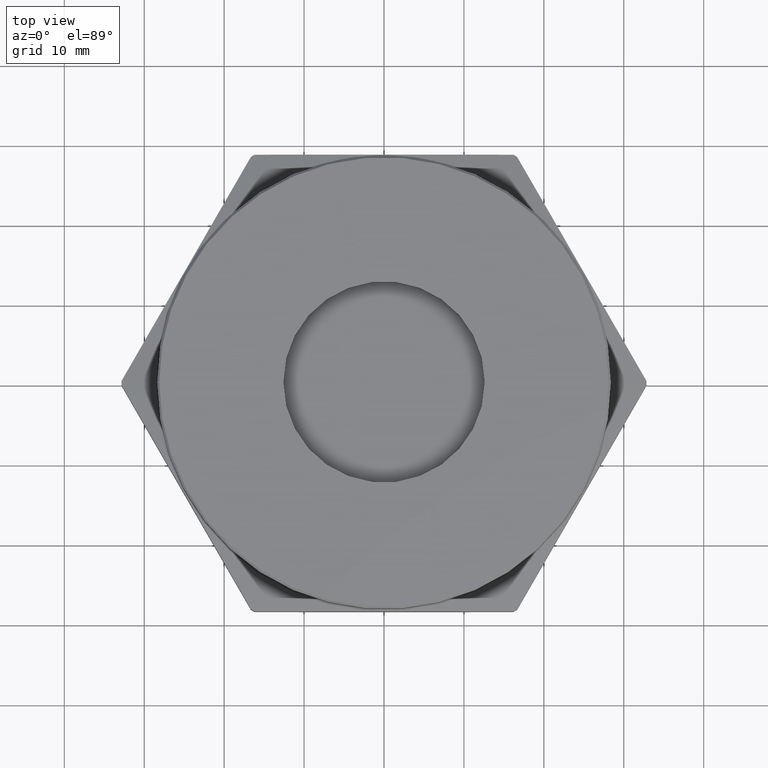
[diagram: clean part render]
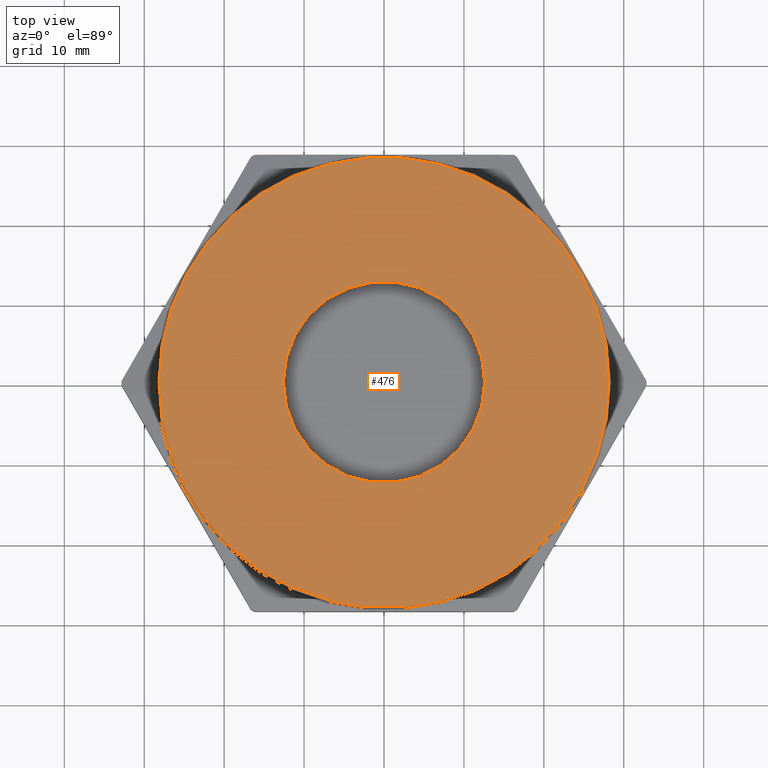
[diagram: same view with one face highlighted and labeled with its STEP entity id]
A machine part, top view. The second image highlights one B-rep face of the part: STEP entity #476.
In plain terms, the highlighted planar face has unit normal (0, 0, 1).
Its self-contained STEP definition (entity closure, byte-faithful):
#240 = CIRCLE ( 'NONE', #712, 0.4960000000000002700 ) ;
#273 = EDGE_CURVE ( 'NONE', #531, #583, #1761, .T. ) ;
#358 = EDGE_CURVE ( 'NONE', #545, #548, #816, .T. ) ;
#359 = EDGE_CURVE ( 'NONE', #583, #531, #810, .T. ) ;
#476 = ADVANCED_FACE ( 'NONE', ( #823, #822 ), #3266, .T. ) ;
#531 = VERTEX_POINT ( 'NONE', #3414 ) ;
#545 = VERTEX_POINT ( 'NONE', #3426 ) ;
#548 = VERTEX_POINT ( 'NONE', #3429 ) ;
#583 = VERTEX_POINT ( 'NONE', #1892 ) ;
#627 = EDGE_CURVE ( 'NONE', #548, #545, #240, .T. ) ;
#655 = AXIS2_PLACEMENT_3D ( 'NONE', #2663, #2662, #2661 ) ;
#681 = AXIS2_PLACEMENT_3D ( 'NONE', #3161, #3162, #3163 ) ;
#682 = AXIS2_PLACEMENT_3D ( 'NONE', #3166, #3167, #3168 ) ;
#688 = AXIS2_PLACEMENT_3D ( 'NONE', #3262, #3377, #3378 ) ;
#712 = AXIS2_PLACEMENT_3D ( 'NONE', #2067, #2068, #2069 ) ;
#810 = CIRCLE ( 'NONE', #682, 1.107499999999999900 ) ;
#816 = CIRCLE ( 'NONE', #681, 0.4960000000000002700 ) ;
#822 = FACE_OUTER_BOUND ( 'NONE', #2611, .T. ) ;
#823 = FACE_BOUND ( 'NONE', #2624, .T. ) ;
#1761 = CIRCLE ( 'NONE', #655, 1.107499999999999900 ) ;
#1872 = ORIENTED_EDGE ( 'NONE', *, *, #358, .F. ) ;
#1873 = ORIENTED_EDGE ( 'NONE', *, *, #627, .F. ) ;
#1892 = CARTESIAN_POINT ( 'NONE',  ( -1.107499999999999900, 0.0000000000000000000, 0.5300000000000000300 ) ) ;
#2067 = CARTESIAN_POINT ( 'NONE',  ( 0.0000000000000000000, 0.0000000000000000000, 0.5300000000000000300 ) ) ;
#2068 = DIRECTION ( 'NONE',  ( -0.0000000000000000000, -0.0000000000000000000, 1.000000000000000000 ) ) ;
#2069 = DIRECTION ( 'NONE',  ( 1.000000000000000000, 0.0000000000000000000, 0.0000000000000000000 ) ) ;
#2575 = ORIENTED_EDGE ( 'NONE', *, *, #359, .T. ) ;
#2579 = ORIENTED_EDGE ( 'NONE', *, *, #273, .T. ) ;
#2611 = EDGE_LOOP ( 'NONE', ( #2575, #2579 ) ) ;
#2624 = EDGE_LOOP ( 'NONE', ( #1872, #1873 ) ) ;
#2661 = DIRECTION ( 'NONE',  ( 1.000000000000000000, 0.0000000000000000000, 0.0000000000000000000 ) ) ;
#2662 = DIRECTION ( 'NONE',  ( 0.0000000000000000000, 0.0000000000000000000, 1.000000000000000000 ) ) ;
#2663 = CARTESIAN_POINT ( 'NONE',  ( 0.0000000000000000000, 0.0000000000000000000, 0.5300000000000000300 ) ) ;
#3161 = CARTESIAN_POINT ( 'NONE',  ( 0.0000000000000000000, 0.0000000000000000000, 0.5300000000000000300 ) ) ;
#3162 = DIRECTION ( 'NONE',  ( -0.0000000000000000000, -0.0000000000000000000, 1.000000000000000000 ) ) ;
#3163 = DIRECTION ( 'NONE',  ( 1.000000000000000000, 0.0000000000000000000, 0.0000000000000000000 ) ) ;
#3166 = CARTESIAN_POINT ( 'NONE',  ( 0.0000000000000000000, 0.0000000000000000000, 0.5300000000000000300 ) ) ;
#3167 = DIRECTION ( 'NONE',  ( 0.0000000000000000000, 0.0000000000000000000, 1.000000000000000000 ) ) ;
#3168 = DIRECTION ( 'NONE',  ( 1.000000000000000000, 0.0000000000000000000, 0.0000000000000000000 ) ) ;
#3262 = CARTESIAN_POINT ( 'NONE',  ( 0.0000000000000000000, 0.0000000000000000000, 0.5300000000000000300 ) ) ;
#3266 = PLANE ( 'NONE',  #688 ) ;
#3377 = DIRECTION ( 'NONE',  ( 0.0000000000000000000, 0.0000000000000000000, 1.000000000000000000 ) ) ;
#3378 = DIRECTION ( 'NONE',  ( 1.000000000000000000, 0.0000000000000000000, -0.0000000000000000000 ) ) ;
#3414 = CARTESIAN_POINT ( 'NONE',  ( 1.107499999999999900, 1.362419564051430400E-016, 0.5300000000000000300 ) ) ;
#3426 = CARTESIAN_POINT ( 'NONE',  ( 0.4960000000000002700, 0.0000000000000000000, 0.5300000000000000300 ) ) ;
#3429 = CARTESIAN_POINT ( 'NONE',  ( -0.4960000000000002700, 6.074248123770874500E-017, 0.5300000000000000300 ) ) ;